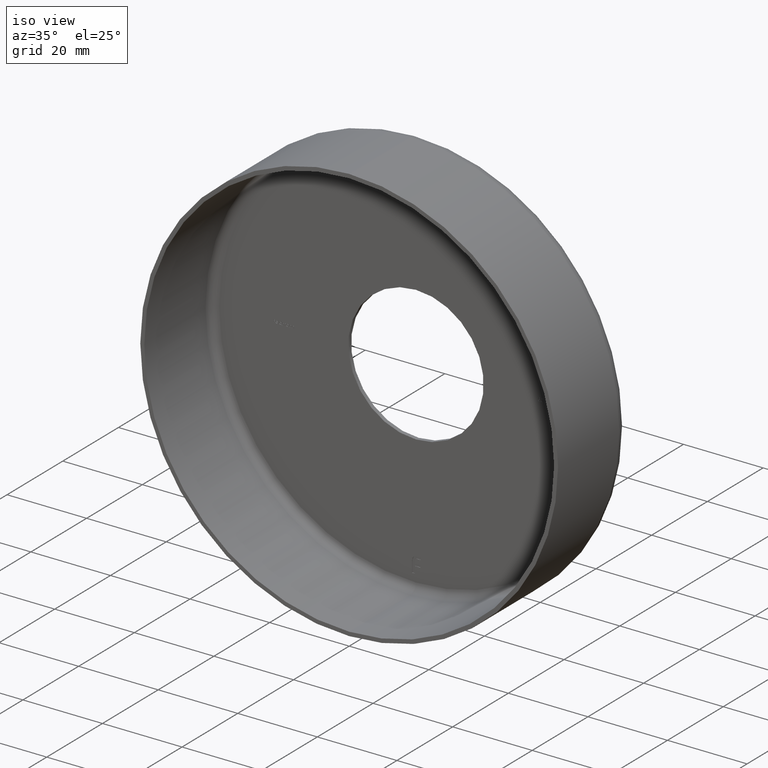
[diagram: clean part render]
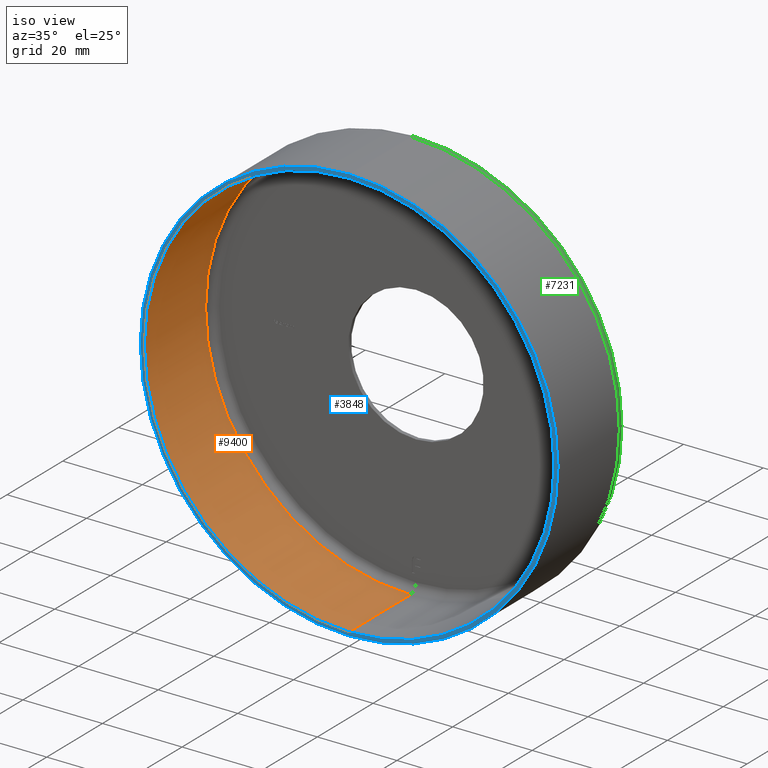
[diagram: same view with three faces highlighted in distinct colors, each labeled with its STEP entity id]
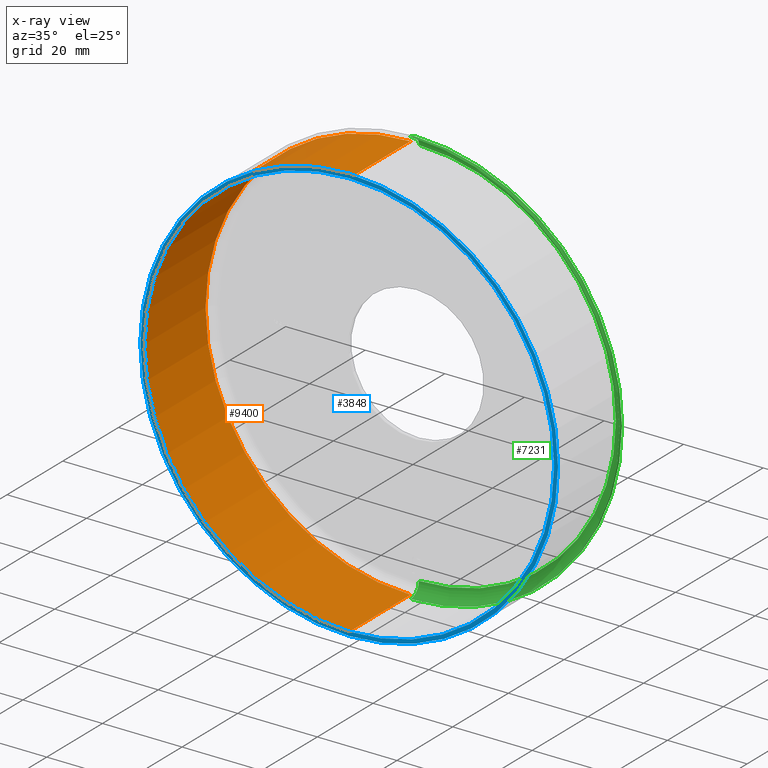
[diagram: x-ray of the same camera — body ghosted, the three highlighted faces saturated]
A machine part, iso view with three faces highlighted in distinct colors.
The next image is the same camera in x-ray (body ghosted, the three faces saturated) — at least one of them is partly hidden behind the body in this view.
Their STEP definitions:

[orange] entity #9400 — the highlighted cylindrical surface (partial cylindrical patch) has radius 51.5 mm, axis along (-0, -1, -0).
#92 = CARTESIAN_POINT ( 'NONE',  ( 0.000000000000000000, -1.224646799147353207E-16, -51.50000000000000711 ) ) ;
#149 = VECTOR ( 'NONE', #10931, 1000.000000000000000 ) ;
#1185 = DIRECTION ( 'NONE',  ( 0.000000000000000000, 0.000000000000000000, -1.000000000000000000 ) ) ;
#1664 = ORIENTED_EDGE ( 'NONE', *, *, #14118, .F. ) ;
#1738 = CARTESIAN_POINT ( 'NONE',  ( 0.000000000000000000, 0.000000000000000000, -51.50000000000000711 ) ) ;
#1837 = DIRECTION ( 'NONE',  ( -0.000000000000000000, -1.000000000000000000, -0.000000000000000000 ) ) ;
#2106 = CYLINDRICAL_SURFACE ( 'NONE', #13354, 51.50000000000000711 ) ;
#3130 = EDGE_CURVE ( 'NONE', #7430, #7500, #13213, .T. ) ;
#4068 = EDGE_LOOP ( 'NONE', ( #12751, #13012, #6802, #1664 ) ) ;
#4141 = DIRECTION ( 'NONE',  ( -0.000000000000000000, -1.000000000000000000, -0.000000000000000000 ) ) ;
#4574 = DIRECTION ( 'NONE',  ( -0.000000000000000000, -1.000000000000000000, -0.000000000000000000 ) ) ;
#4650 = DIRECTION ( 'NONE',  ( -0.000000000000000000, -1.000000000000000000, -0.000000000000000000 ) ) ;
#4703 = DIRECTION ( 'NONE',  ( 0.000000000000000000, 0.000000000000000000, -1.000000000000000000 ) ) ;
#6238 = CARTESIAN_POINT ( 'NONE',  ( 6.306931015608869596E-15, -1.224646799147353207E-16, 51.50000000000000711 ) ) ;
#6786 = AXIS2_PLACEMENT_3D ( 'NONE', #6793, #1837, #13897 ) ;
#6793 = CARTESIAN_POINT ( 'NONE',  ( 0.000000000000000000, 22.00000000000000355, 0.000000000000000000 ) ) ;
#6802 = ORIENTED_EDGE ( 'NONE', *, *, #8654, .T. ) ;
#6961 = VECTOR ( 'NONE', #4141, 1000.000000000000000 ) ;
#7430 = VERTEX_POINT ( 'NONE', #11869 ) ;
#7500 = VERTEX_POINT ( 'NONE', #6238 ) ;
#7678 = AXIS2_PLACEMENT_3D ( 'NONE', #9285, #4650, #4703 ) ;
#8654 = EDGE_CURVE ( 'NONE', #7500, #10697, #9939, .T. ) ;
#9285 = CARTESIAN_POINT ( 'NONE',  ( 0.000000000000000000, -1.224646799147353207E-16, 0.000000000000000000 ) ) ;
#9400 = ADVANCED_FACE ( 'NONE', ( #11422 ), #2106, .F. ) ;
#9939 = CIRCLE ( 'NONE', #7678, 51.50000000000000711 ) ;
#10313 = LINE ( 'NONE', #1738, #6961 ) ;
#10630 = CIRCLE ( 'NONE', #6786, 51.50000000000000711 ) ;
#10697 = VERTEX_POINT ( 'NONE', #92 ) ;
#10931 = DIRECTION ( 'NONE',  ( -0.000000000000000000, -1.000000000000000000, -0.000000000000000000 ) ) ;
#11274 = EDGE_CURVE ( 'NONE', #7430, #14006, #10630, .T. ) ;
#11422 = FACE_OUTER_BOUND ( 'NONE', #4068, .T. ) ;
#11869 = CARTESIAN_POINT ( 'NONE',  ( 6.306931015608869596E-15, 22.00000000000000355, 51.50000000000000711 ) ) ;
#11870 = CARTESIAN_POINT ( 'NONE',  ( 0.000000000000000000, 0.000000000000000000, 0.000000000000000000 ) ) ;
#12751 = ORIENTED_EDGE ( 'NONE', *, *, #11274, .F. ) ;
#13012 = ORIENTED_EDGE ( 'NONE', *, *, #3130, .T. ) ;
#13213 = LINE ( 'NONE', #14463, #149 ) ;
#13354 = AXIS2_PLACEMENT_3D ( 'NONE', #11870, #4574, #1185 ) ;
#13418 = CARTESIAN_POINT ( 'NONE',  ( 0.000000000000000000, 22.00000000000000355, -51.50000000000000711 ) ) ;
#13897 = DIRECTION ( 'NONE',  ( 0.000000000000000000, 0.000000000000000000, -1.000000000000000000 ) ) ;
#14006 = VERTEX_POINT ( 'NONE', #13418 ) ;
#14118 = EDGE_CURVE ( 'NONE', #14006, #10697, #10313, .T. ) ;
#14463 = CARTESIAN_POINT ( 'NONE',  ( 6.306931015608869596E-15, 0.000000000000000000, 51.50000000000000711 ) ) ;

[blue] entity #3848 — the highlighted planar face has unit normal (0, -1, -0).
#92 = CARTESIAN_POINT ( 'NONE',  ( 0.000000000000000000, -1.224646799147353207E-16, -51.50000000000000711 ) ) ;
#333 = EDGE_CURVE ( 'NONE', #1529, #910, #6921, .T. ) ;
#439 = DIRECTION ( 'NONE',  ( 0.000000000000000000, 0.000000000000000000, -1.000000000000000000 ) ) ;
#910 = VERTEX_POINT ( 'NONE', #12928 ) ;
#1189 = EDGE_CURVE ( 'NONE', #10697, #7500, #2438, .T. ) ;
#1529 = VERTEX_POINT ( 'NONE', #7813 ) ;
#1759 = EDGE_CURVE ( 'NONE', #910, #1529, #9852, .T. ) ;
#2438 = CIRCLE ( 'NONE', #14033, 51.50000000000000711 ) ;
#2479 = DIRECTION ( 'NONE',  ( 0.000000000000000000, 0.000000000000000000, -1.000000000000000000 ) ) ;
#2765 = FACE_BOUND ( 'NONE', #15276, .T. ) ;
#3512 = ORIENTED_EDGE ( 'NONE', *, *, #333, .T. ) ;
#3562 = ORIENTED_EDGE ( 'NONE', *, *, #1759, .T. ) ;
#3848 = ADVANCED_FACE ( 'NONE', ( #8335, #2765 ), #5228, .T. ) ;
#4650 = DIRECTION ( 'NONE',  ( -0.000000000000000000, -1.000000000000000000, -0.000000000000000000 ) ) ;
#4703 = DIRECTION ( 'NONE',  ( 0.000000000000000000, 0.000000000000000000, -1.000000000000000000 ) ) ;
#5182 = DIRECTION ( 'NONE',  ( 0.000000000000000000, 0.000000000000000000, -1.000000000000000000 ) ) ;
#5228 = PLANE ( 'NONE',  #11437 ) ;
#6238 = CARTESIAN_POINT ( 'NONE',  ( 6.306931015608869596E-15, -1.224646799147353207E-16, 51.50000000000000711 ) ) ;
#6544 = CARTESIAN_POINT ( 'NONE',  ( 0.000000000000000000, -1.224646799147353207E-16, 0.000000000000000000 ) ) ;
#6921 = CIRCLE ( 'NONE', #7039, 52.50000000000000711 ) ;
#6989 = EDGE_LOOP ( 'NONE', ( #3512, #3562 ) ) ;
#7039 = AXIS2_PLACEMENT_3D ( 'NONE', #9545, #8252, #2479 ) ;
#7500 = VERTEX_POINT ( 'NONE', #6238 ) ;
#7544 = CARTESIAN_POINT ( 'NONE',  ( 0.000000000000000000, 0.000000000000000000, 0.000000000000000000 ) ) ;
#7585 = DIRECTION ( 'NONE',  ( 0.000000000000000000, -1.000000000000000000, -0.000000000000000000 ) ) ;
#7660 = ORIENTED_EDGE ( 'NONE', *, *, #8654, .F. ) ;
#7678 = AXIS2_PLACEMENT_3D ( 'NONE', #9285, #4650, #4703 ) ;
#7813 = CARTESIAN_POINT ( 'NONE',  ( 0.000000000000000000, 0.000000000000000000, -52.50000000000000711 ) ) ;
#8252 = DIRECTION ( 'NONE',  ( -0.000000000000000000, -1.000000000000000000, -0.000000000000000000 ) ) ;
#8335 = FACE_OUTER_BOUND ( 'NONE', #6989, .T. ) ;
#8654 = EDGE_CURVE ( 'NONE', #7500, #10697, #9939, .T. ) ;
#8702 = CARTESIAN_POINT ( 'NONE',  ( 51.50000000000000711, -6.123233995736766036E-17, 0.000000000000000000 ) ) ;
#8709 = DIRECTION ( 'NONE',  ( -0.000000000000000000, -1.000000000000000000, -0.000000000000000000 ) ) ;
#9033 = AXIS2_PLACEMENT_3D ( 'NONE', #7544, #8709, #5182 ) ;
#9285 = CARTESIAN_POINT ( 'NONE',  ( 0.000000000000000000, -1.224646799147353207E-16, 0.000000000000000000 ) ) ;
#9545 = CARTESIAN_POINT ( 'NONE',  ( 0.000000000000000000, 0.000000000000000000, 0.000000000000000000 ) ) ;
#9852 = CIRCLE ( 'NONE', #9033, 52.50000000000000711 ) ;
#9939 = CIRCLE ( 'NONE', #7678, 51.50000000000000711 ) ;
#10311 = ORIENTED_EDGE ( 'NONE', *, *, #1189, .F. ) ;
#10697 = VERTEX_POINT ( 'NONE', #92 ) ;
#11219 = DIRECTION ( 'NONE',  ( -0.000000000000000000, -1.000000000000000000, -0.000000000000000000 ) ) ;
#11437 = AXIS2_PLACEMENT_3D ( 'NONE', #8702, #7585, #439 ) ;
#12440 = DIRECTION ( 'NONE',  ( 0.000000000000000000, 0.000000000000000000, -1.000000000000000000 ) ) ;
#12928 = CARTESIAN_POINT ( 'NONE',  ( 6.429395695523604744E-15, 0.000000000000000000, 52.50000000000000711 ) ) ;
#14033 = AXIS2_PLACEMENT_3D ( 'NONE', #6544, #11219, #12440 ) ;
#15276 = EDGE_LOOP ( 'NONE', ( #10311, #7660 ) ) ;

[green] entity #7231 — the highlighted toroidal blend (fillet) surface has major radius 49.5 mm and minor (blend) radius 3 mm.
#354 = VERTEX_POINT ( 'NONE', #4848 ) ;
#360 = CIRCLE ( 'NONE', #9219, 52.50000000000000711 ) ;
#548 = VERTEX_POINT ( 'NONE', #9078 ) ;
#575 = AXIS2_PLACEMENT_3D ( 'NONE', #14842, #11166, #13641 ) ;
#659 = TOROIDAL_SURFACE ( 'NONE', #4367, 49.50000000000000000, 3.000000000000000888 ) ;
#1017 = CIRCLE ( 'NONE', #575, 3.000000000000002665 ) ;
#1492 = EDGE_CURVE ( 'NONE', #5353, #354, #360, .T. ) ;
#1756 = CARTESIAN_POINT ( 'NONE',  ( 0.000000000000000000, 22.00000000000000355, -52.50000000000000711 ) ) ;
#1787 = DIRECTION ( 'NONE',  ( -1.224646799147351975E-16, 0.000000000000000000, -1.000000000000000000 ) ) ;
#1986 = DIRECTION ( 'NONE',  ( -0.000000000000000000, -1.000000000000000000, -0.000000000000000000 ) ) ;
#2873 = DIRECTION ( 'NONE',  ( 0.000000000000000000, 0.000000000000000000, -1.000000000000000000 ) ) ;
#3108 = DIRECTION ( 'NONE',  ( 1.000000000000000000, 0.000000000000000000, -1.224646799147353207E-16 ) ) ;
#3371 = ORIENTED_EDGE ( 'NONE', *, *, #5799, .T. ) ;
#4125 = VERTEX_POINT ( 'NONE', #4713 ) ;
#4193 = CARTESIAN_POINT ( 'NONE',  ( 6.062001655779398511E-15, 22.00000000000000355, 49.50000000000000000 ) ) ;
#4277 = EDGE_CURVE ( 'NONE', #548, #4125, #6096, .T. ) ;
#4367 = AXIS2_PLACEMENT_3D ( 'NONE', #12730, #1986, #4425 ) ;
#4425 = DIRECTION ( 'NONE',  ( 0.000000000000000000, 0.000000000000000000, -1.000000000000000000 ) ) ;
#4713 = CARTESIAN_POINT ( 'NONE',  ( 6.245698675651501233E-15, 25.00000000000000000, 49.50000000000000000 ) ) ;
#4848 = CARTESIAN_POINT ( 'NONE',  ( 6.429395695523604744E-15, 22.00000000000000355, 52.50000000000000711 ) ) ;
#5260 = ORIENTED_EDGE ( 'NONE', *, *, #7519, .F. ) ;
#5353 = VERTEX_POINT ( 'NONE', #1756 ) ;
#5503 = DIRECTION ( 'NONE',  ( 0.000000000000000000, 0.000000000000000000, -1.000000000000000000 ) ) ;
#5799 = EDGE_CURVE ( 'NONE', #4125, #354, #15048, .T. ) ;
#6096 = CIRCLE ( 'NONE', #10612, 49.50000000000000000 ) ;
#7231 = ADVANCED_FACE ( 'NONE', ( #7757 ), #659, .T. ) ;
#7519 = EDGE_CURVE ( 'NONE', #548, #5353, #1017, .T. ) ;
#7757 = FACE_OUTER_BOUND ( 'NONE', #10938, .T. ) ;
#8996 = DIRECTION ( 'NONE',  ( -0.000000000000000000, -1.000000000000000000, -0.000000000000000000 ) ) ;
#9078 = CARTESIAN_POINT ( 'NONE',  ( 0.000000000000000000, 25.00000000000000000, -49.50000000000000000 ) ) ;
#9219 = AXIS2_PLACEMENT_3D ( 'NONE', #12459, #8996, #2873 ) ;
#10612 = AXIS2_PLACEMENT_3D ( 'NONE', #14995, #11388, #5503 ) ;
#10938 = EDGE_LOOP ( 'NONE', ( #11159, #3371, #12849, #5260 ) ) ;
#11159 = ORIENTED_EDGE ( 'NONE', *, *, #4277, .T. ) ;
#11166 = DIRECTION ( 'NONE',  ( -1.000000000000000000, 0.000000000000000000, 0.000000000000000000 ) ) ;
#11388 = DIRECTION ( 'NONE',  ( -0.000000000000000000, -1.000000000000000000, -0.000000000000000000 ) ) ;
#12459 = CARTESIAN_POINT ( 'NONE',  ( 0.000000000000000000, 22.00000000000000355, 0.000000000000000000 ) ) ;
#12730 = CARTESIAN_POINT ( 'NONE',  ( 0.000000000000000000, 22.00000000000000355, 0.000000000000000000 ) ) ;
#12849 = ORIENTED_EDGE ( 'NONE', *, *, #1492, .F. ) ;
#13641 = DIRECTION ( 'NONE',  ( 0.000000000000000000, 0.000000000000000000, 1.000000000000000000 ) ) ;
#14748 = AXIS2_PLACEMENT_3D ( 'NONE', #4193, #3108, #1787 ) ;
#14842 = CARTESIAN_POINT ( 'NONE',  ( 0.000000000000000000, 22.00000000000000355, -49.50000000000000000 ) ) ;
#14995 = CARTESIAN_POINT ( 'NONE',  ( 0.000000000000000000, 25.00000000000000000, 0.000000000000000000 ) ) ;
#15048 = CIRCLE ( 'NONE', #14748, 3.000000000000002665 ) ;